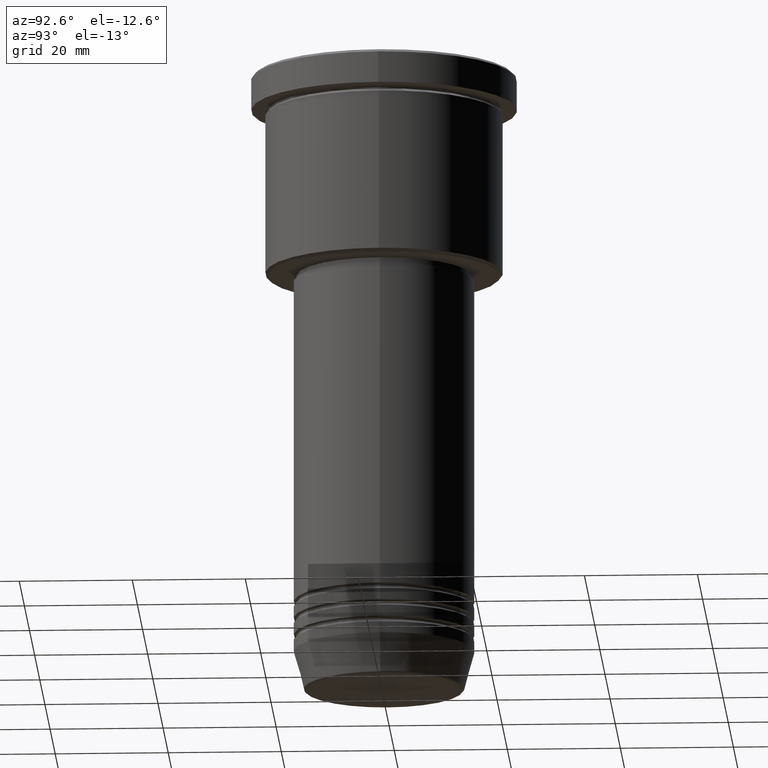
[diagram: clean part render]
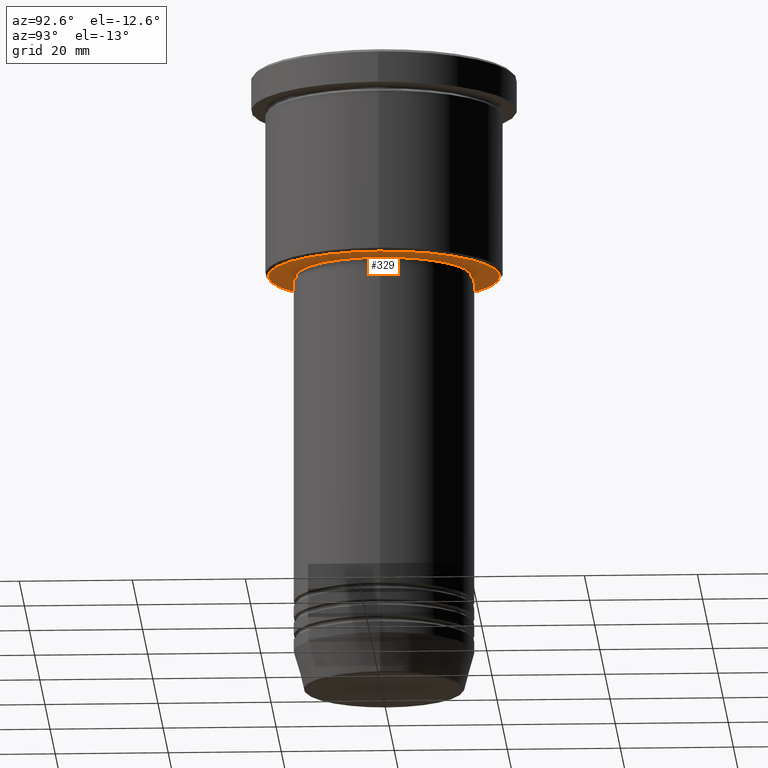
[diagram: same view with one face highlighted and labeled with its STEP entity id]
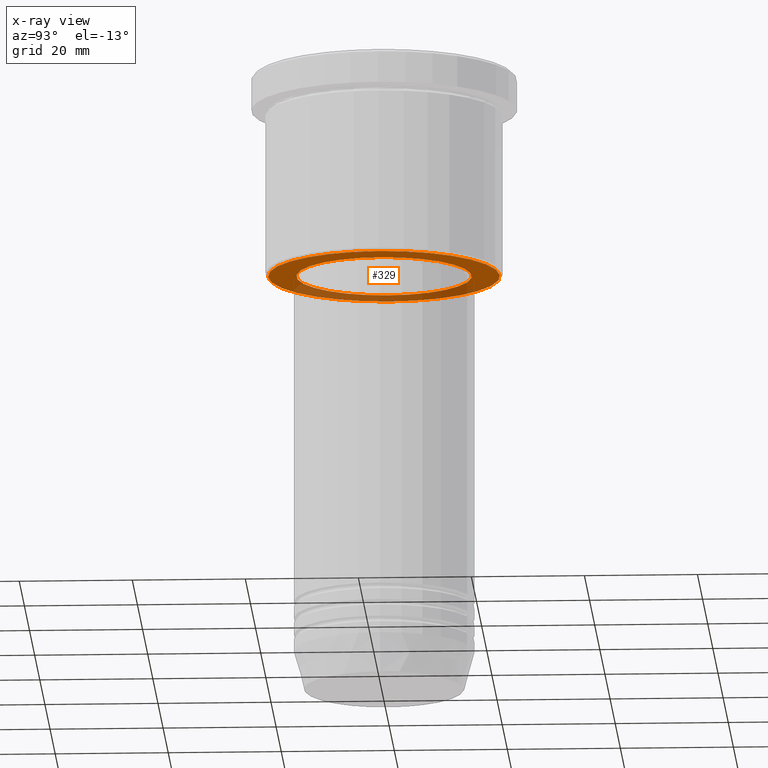
[diagram: x-ray of the same camera — body ghosted, the highlighted face saturated]
A machine part, auxiliary view. The second image highlights one B-rep face of the part: STEP entity #329.
The next image is the same camera in x-ray: the body ghosted, the highlighted face saturated — about 33% of this face is hidden behind the body in this view.
In plain terms, the highlighted planar face has unit normal (0, 0, -1).
Its self-contained STEP definition (entity closure, byte-faithful):
#14 = CARTESIAN_POINT ( 'NONE',  ( -20.50000000000001776, 2.541142108230759057E-15, -36.00000000000000711 ) ) ;
#20 = CARTESIAN_POINT ( 'NONE',  ( 0.000000000000000000, 0.000000000000000000, -36.00000000000000711 ) ) ;
#25 = ORIENTED_EDGE ( 'NONE', *, *, #553, .T. ) ;
#111 = EDGE_CURVE ( 'NONE', #416, #600, #444, .T. ) ;
#120 = VERTEX_POINT ( 'NONE', #342 ) ;
#122 = EDGE_LOOP ( 'NONE', ( #668, #25 ) ) ;
#138 = DIRECTION ( 'NONE',  ( -1.000000000000000000, 0.000000000000000000, -0.000000000000000000 ) ) ;
#152 = DIRECTION ( 'NONE',  ( 0.000000000000000000, 0.000000000000000000, -1.000000000000000000 ) ) ;
#242 = CARTESIAN_POINT ( 'NONE',  ( 0.000000000000000000, 21.00000000000000000, -36.00000000000000711 ) ) ;
#254 = DIRECTION ( 'NONE',  ( 1.000000000000000000, 0.000000000000000000, 0.000000000000000000 ) ) ;
#262 = ORIENTED_EDGE ( 'NONE', *, *, #111, .T. ) ;
#303 = DIRECTION ( 'NONE',  ( 0.000000000000000000, 0.000000000000000000, -1.000000000000000000 ) ) ;
#329 = ADVANCED_FACE ( 'NONE', ( #349, #994 ), #824, .T. ) ;
#342 = CARTESIAN_POINT ( 'NONE',  ( -15.50000000000000000, 1.898202538678397557E-15, -36.00000000000000711 ) ) ;
#349 = FACE_OUTER_BOUND ( 'NONE', #517, .T. ) ;
#355 = CARTESIAN_POINT ( 'NONE',  ( 0.000000000000000000, 0.000000000000000000, -36.00000000000000711 ) ) ;
#403 = AXIS2_PLACEMENT_3D ( 'NONE', #242, #152, #138 ) ;
#416 = VERTEX_POINT ( 'NONE', #14 ) ;
#424 = CIRCLE ( 'NONE', #855, 20.50000000000001776 ) ;
#427 = EDGE_CURVE ( 'NONE', #1086, #120, #1057, .T. ) ;
#444 = CIRCLE ( 'NONE', #1109, 20.50000000000001776 ) ;
#494 = EDGE_CURVE ( 'NONE', #600, #416, #424, .T. ) ;
#517 = EDGE_LOOP ( 'NONE', ( #1065, #262 ) ) ;
#530 = DIRECTION ( 'NONE',  ( 0.000000000000000000, 0.000000000000000000, -1.000000000000000000 ) ) ;
#553 = EDGE_CURVE ( 'NONE', #120, #1086, #967, .T. ) ;
#600 = VERTEX_POINT ( 'NONE', #1165 ) ;
#611 = CARTESIAN_POINT ( 'NONE',  ( 0.000000000000000000, 0.000000000000000000, -36.00000000000000711 ) ) ;
#668 = ORIENTED_EDGE ( 'NONE', *, *, #427, .T. ) ;
#712 = DIRECTION ( 'NONE',  ( 1.000000000000000000, 0.000000000000000000, 0.000000000000000000 ) ) ;
#824 = PLANE ( 'NONE',  #403 ) ;
#855 = AXIS2_PLACEMENT_3D ( 'NONE', #611, #303, #982 ) ;
#901 = CARTESIAN_POINT ( 'NONE',  ( 0.000000000000000000, 0.000000000000000000, -36.00000000000000711 ) ) ;
#945 = AXIS2_PLACEMENT_3D ( 'NONE', #20, #1008, #254 ) ;
#967 = CIRCLE ( 'NONE', #984, 15.50000000000000000 ) ;
#982 = DIRECTION ( 'NONE',  ( -1.000000000000000000, 0.000000000000000000, 0.000000000000000000 ) ) ;
#984 = AXIS2_PLACEMENT_3D ( 'NONE', #901, #1177, #712 ) ;
#994 = FACE_BOUND ( 'NONE', #122, .T. ) ;
#1008 = DIRECTION ( 'NONE',  ( -0.000000000000000000, -0.000000000000000000, 1.000000000000000000 ) ) ;
#1057 = CIRCLE ( 'NONE', #945, 15.50000000000000000 ) ;
#1065 = ORIENTED_EDGE ( 'NONE', *, *, #494, .T. ) ;
#1068 = DIRECTION ( 'NONE',  ( -1.000000000000000000, 0.000000000000000000, 0.000000000000000000 ) ) ;
#1086 = VERTEX_POINT ( 'NONE', #1138 ) ;
#1109 = AXIS2_PLACEMENT_3D ( 'NONE', #355, #530, #1068 ) ;
#1138 = CARTESIAN_POINT ( 'NONE',  ( 15.50000000000000000, 0.000000000000000000, -36.00000000000000711 ) ) ;
#1165 = CARTESIAN_POINT ( 'NONE',  ( 20.50000000000001776, 0.000000000000000000, -36.00000000000000711 ) ) ;
#1177 = DIRECTION ( 'NONE',  ( -0.000000000000000000, -0.000000000000000000, 1.000000000000000000 ) ) ;